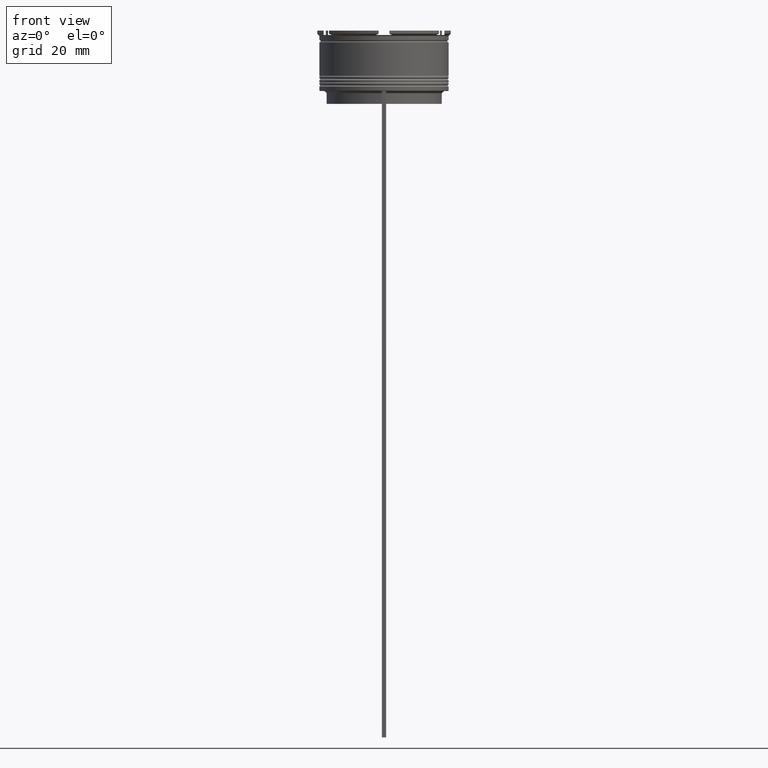
[diagram: clean part render]
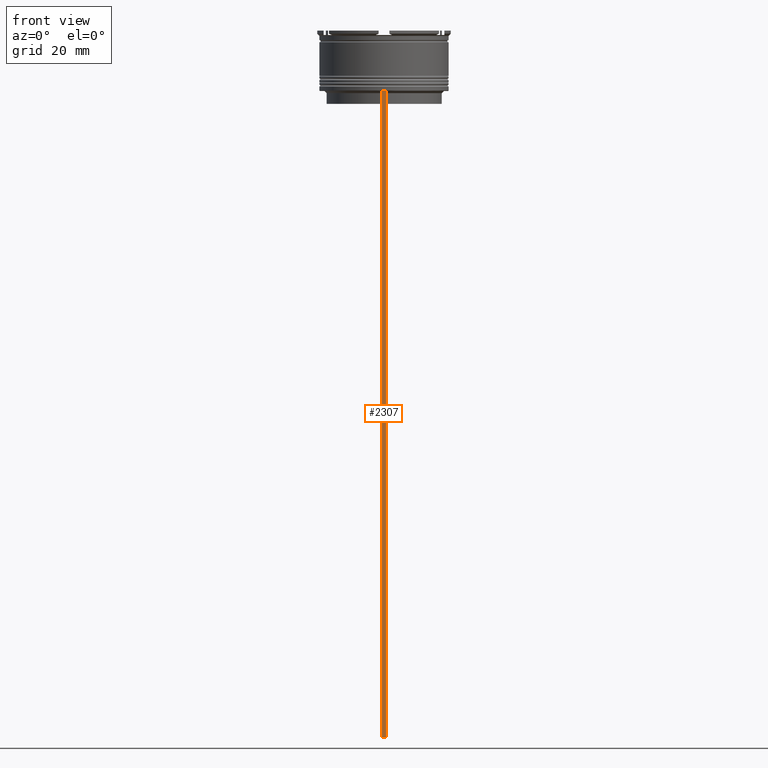
[diagram: same view with one face highlighted and labeled with its STEP entity id]
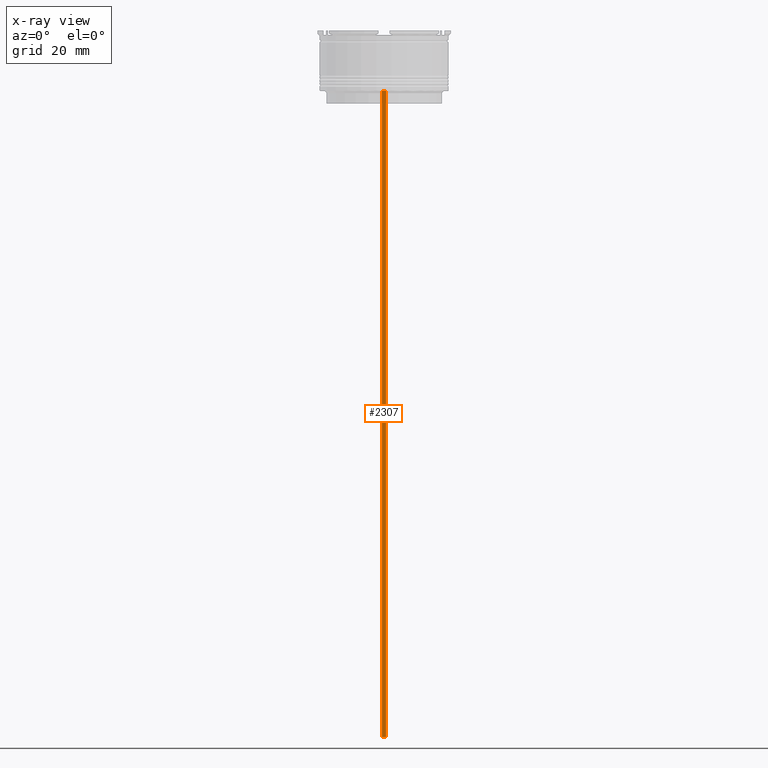
[diagram: x-ray of the same camera — body ghosted, the highlighted face saturated]
A machine part, front view. The second image highlights one B-rep face of the part: STEP entity #2307.
The next image is the same camera in x-ray: the body ghosted, the highlighted face saturated — about 0% of this face is hidden behind the body in this view.
In plain terms, the highlighted planar face has unit normal (0, -1, -0).
Its self-contained STEP definition (entity closure, byte-faithful):
#11 = DIRECTION ( 'NONE',  ( 0.000000000000000000, 0.000000000000000000, -1.000000000000000000 ) ) ;
#57 = VECTOR ( 'NONE', #1330, 1000.000000000000000 ) ;
#77 = VERTEX_POINT ( 'NONE', #704 ) ;
#123 = ORIENTED_EDGE ( 'NONE', *, *, #1039, .F. ) ;
#226 = CARTESIAN_POINT ( 'NONE',  ( 0.5000000000000001110, -15.00000000000000355, 16.01666203960726165 ) ) ;
#408 = CARTESIAN_POINT ( 'NONE',  ( 0.5000000000000001110, -15.00000000000000355, 16.01666203960726165 ) ) ;
#434 = CARTESIAN_POINT ( 'NONE',  ( 0.5000000000000001110, -15.00000000000000355, -163.9999999999999716 ) ) ;
#650 = PLANE ( 'NONE',  #2850 ) ;
#704 = CARTESIAN_POINT ( 'NONE',  ( 0.5000000000000001110, -15.00000000000000355, -163.9999999999999716 ) ) ;
#782 = CARTESIAN_POINT ( 'NONE',  ( 0.5000000000000001110, -15.00000000000000355, -14.00000000000000178 ) ) ;
#894 = CARTESIAN_POINT ( 'NONE',  ( -0.4999999999999998890, -15.00000000000000355, 16.01666203960726165 ) ) ;
#1017 = VECTOR ( 'NONE', #1200, 1000.000000000000000 ) ;
#1039 = EDGE_CURVE ( 'NONE', #1227, #1183, #1789, .T. ) ;
#1098 = LINE ( 'NONE', #894, #2058 ) ;
#1151 = ORIENTED_EDGE ( 'NONE', *, *, #2721, .T. ) ;
#1183 = VERTEX_POINT ( 'NONE', #1506 ) ;
#1200 = DIRECTION ( 'NONE',  ( 1.000000000000000000, 0.000000000000000000, 0.000000000000000000 ) ) ;
#1227 = VERTEX_POINT ( 'NONE', #1725 ) ;
#1289 = LINE ( 'NONE', #408, #1875 ) ;
#1330 = DIRECTION ( 'NONE',  ( -1.000000000000000000, 0.000000000000000000, 0.000000000000000000 ) ) ;
#1397 = VERTEX_POINT ( 'NONE', #2057 ) ;
#1506 = CARTESIAN_POINT ( 'NONE',  ( 0.5000000000000001110, -15.00000000000000355, -14.00000000000000178 ) ) ;
#1519 = DIRECTION ( 'NONE',  ( 0.000000000000000000, 0.000000000000000000, -1.000000000000000000 ) ) ;
#1725 = CARTESIAN_POINT ( 'NONE',  ( -0.4999999999999998890, -15.00000000000000355, -14.00000000000000178 ) ) ;
#1789 = LINE ( 'NONE', #782, #1017 ) ;
#1812 = ORIENTED_EDGE ( 'NONE', *, *, #2702, .F. ) ;
#1836 = EDGE_CURVE ( 'NONE', #77, #1397, #2431, .T. ) ;
#1875 = VECTOR ( 'NONE', #1986, 1000.000000000000000 ) ;
#1986 = DIRECTION ( 'NONE',  ( 0.000000000000000000, 0.000000000000000000, -1.000000000000000000 ) ) ;
#2001 = DIRECTION ( 'NONE',  ( 0.000000000000000000, -1.000000000000000000, -0.000000000000000000 ) ) ;
#2057 = CARTESIAN_POINT ( 'NONE',  ( -0.4999999999999998890, -15.00000000000000355, -163.9999999999999716 ) ) ;
#2058 = VECTOR ( 'NONE', #1519, 1000.000000000000000 ) ;
#2094 = ORIENTED_EDGE ( 'NONE', *, *, #1836, .F. ) ;
#2220 = FACE_OUTER_BOUND ( 'NONE', #2716, .T. ) ;
#2307 = ADVANCED_FACE ( 'NONE', ( #2220 ), #650, .T. ) ;
#2431 = LINE ( 'NONE', #434, #57 ) ;
#2702 = EDGE_CURVE ( 'NONE', #1183, #77, #1289, .T. ) ;
#2716 = EDGE_LOOP ( 'NONE', ( #123, #1151, #2094, #1812 ) ) ;
#2721 = EDGE_CURVE ( 'NONE', #1227, #1397, #1098, .T. ) ;
#2850 = AXIS2_PLACEMENT_3D ( 'NONE', #226, #2001, #11 ) ;